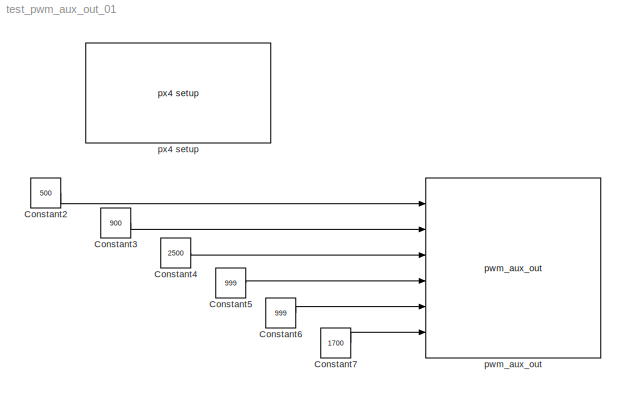
MODEL test_pwm_aux_out_01
KIND model
CONFIG InitFcn = px4_ap1_mdl_callback('check_model');
BLOCK [Constant] Constant2
  OutDataTypeStr = uint16
  SID = 1
  Value = 500
BLOCK [Constant] Constant3
  OutDataTypeStr = uint16
  SID = 2
  Value = 900
BLOCK [Constant] Constant4
  OutDataTypeStr = uint16
  SID = 3
  Value = 2500
BLOCK [Constant] Constant5
  OutDataTypeStr = uint16
  SID = 4
  Value = 999
BLOCK [Constant] Constant6
  OutDataTypeStr = uint16
  SID = 5
  Value = 999
BLOCK [Constant] Constant7
  OutDataTypeStr = uint16
  SID = 6
  Value = 1700
BLOCK [Reference] pwm_aux_out  REF=px4_ap1_pwm_aux_out_lib/pwm_aux_out
  Description = Setup for PX4 native software
  Ports = [6]
  SID = 7
  SourceBlock = px4_ap1_pwm_aux_out_lib/pwm_aux_out
  SourceType = PX4_PWM_AUX_OUT
  aux1 = on
  aux2 = on
  aux3 = on
  aux4 = on
  aux5 = on
  aux6 = on
  pwm_1_4 = 19
  pwm_5_6 = 401
BLOCK [Reference] px4 setup  REF=px4_ap1_px4setup_lib/px4 setup
  Ports = []
  SID = 8
  SampleTimeValue = 0.01
  SourceBlock = px4_ap1_px4setup_lib/px4 setup
  SourceType = PX4_Target_Setup
  cbBuild = on
  cbPort = COM3
  cbUpload = off
  cpuLoad = off
  debugmode = on
LINE Constant2:1 -> pwm_aux_out:1
LINE Constant3:1 -> pwm_aux_out:2
LINE Constant4:1 -> pwm_aux_out:3
LINE Constant5:1 -> pwm_aux_out:4
LINE Constant6:1 -> pwm_aux_out:5
LINE Constant7:1 -> pwm_aux_out:6
